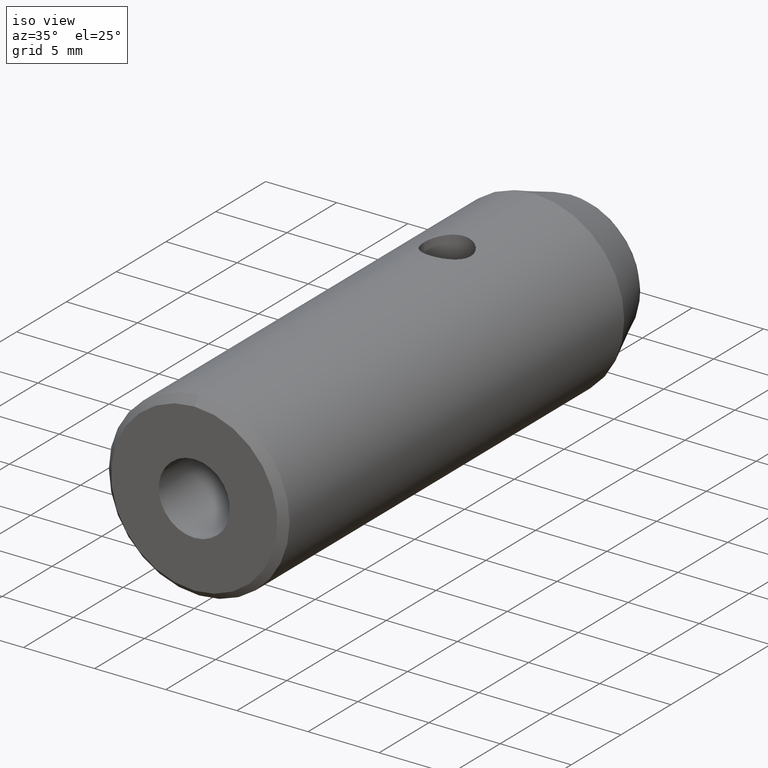
[diagram: clean part render]
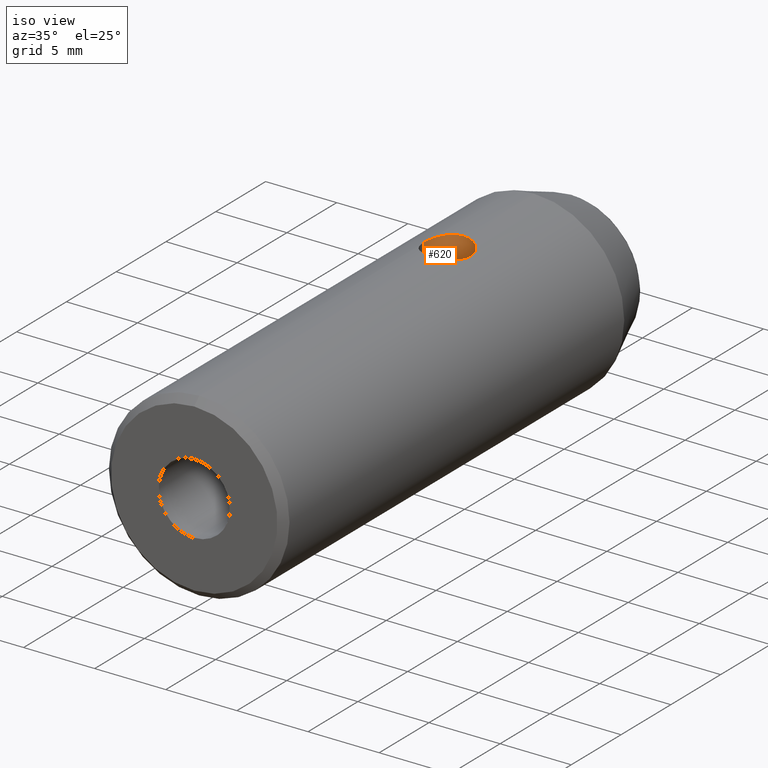
[diagram: same view with one face highlighted and labeled with its STEP entity id]
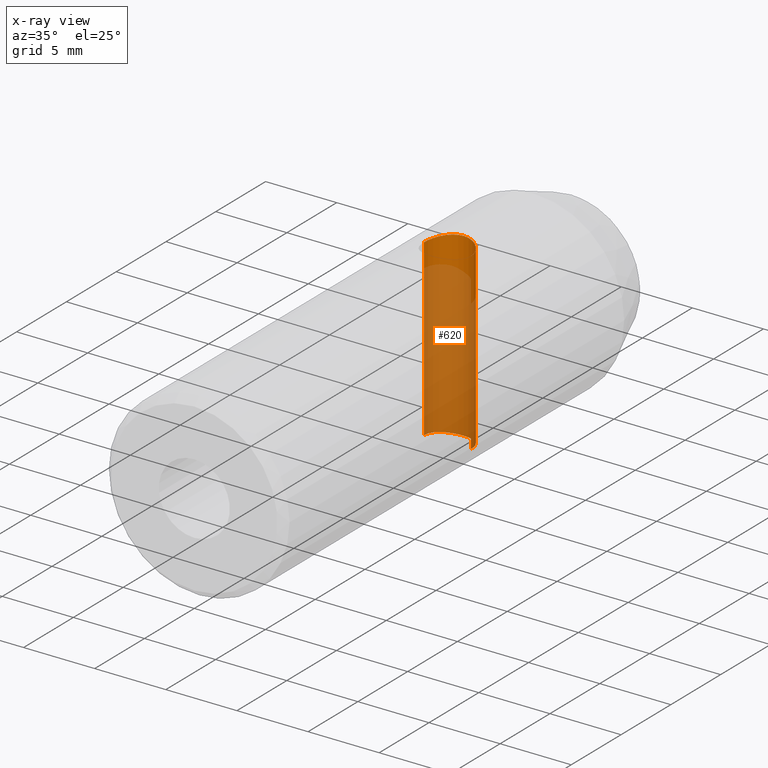
[diagram: x-ray of the same camera — body ghosted, the highlighted face saturated]
A machine part, iso view. The second image highlights one B-rep face of the part: STEP entity #620.
The next image is the same camera in x-ray: the body ghosted, the highlighted face saturated — about 83% of this face is hidden behind the body in this view.
In plain terms, the highlighted cylindrical surface (edge-blend (fillet) strip) has radius 1.65 mm, axis along (0, 0, 1).
Its self-contained STEP definition (entity closure, byte-faithful):
#11 = CARTESIAN_POINT ( 'NONE',  ( -1.649999999999999900, 25.39999999999999900, -6.131883886702356200 ) ) ;
#20 = CARTESIAN_POINT ( 'NONE',  ( 1.650000000000000100, 25.50879101173561400, -6.131883886702358800 ) ) ;
#23 = CARTESIAN_POINT ( 'NONE',  ( 0.5350354595222538400, 26.96454767843864900, -6.328206572559576400 ) ) ;
#24 = EDGE_LOOP ( 'NONE', ( #558, #426, #527, #247, #420, #229 ) ) ;
#31 = CARTESIAN_POINT ( 'NONE',  ( -1.243166558392556000, 26.49023665135910800, 6.227601864458365300 ) ) ;
#36 = CARTESIAN_POINT ( 'NONE',  ( 1.014955855173022000, 26.71839968449205600, 6.270254070800323400 ) ) ;
#41 = CARTESIAN_POINT ( 'NONE',  ( 1.649999999999999900, 25.39999999999999900, -6.349999999999999600 ) ) ;
#46 = ORIENTED_EDGE ( 'NONE', *, *, #455, .F. ) ;
#49 = CARTESIAN_POINT ( 'NONE',  ( -0.1095553982157421400, 27.04999999999999400, -6.349999999999999600 ) ) ;
#52 = CARTESIAN_POINT ( 'NONE',  ( -0.03682806110318779400, 27.04959919837903800, -0.05799023608464262000 ) ) ;
#54 = CARTESIAN_POINT ( 'NONE',  ( -0.05990600339138792100, 27.04891416830398800, -0.03072629399164850100 ) ) ;
#56 = CARTESIAN_POINT ( 'NONE',  ( -0.5338866542031179800, 26.96497814379134500, -6.328311955744355000 ) ) ;
#58 = VERTEX_POINT ( 'NONE', #461 ) ;
#62 = CARTESIAN_POINT ( 'NONE',  ( 0.03962274863853397500, 27.04952418526989900, -0.05543872409836748300 ) ) ;
#68 = CARTESIAN_POINT ( 'NONE',  ( 0.007890637950777627500, 27.04998113256871100, 0.06844979020908142900 ) ) ;
#71 = CARTESIAN_POINT ( 'NONE',  ( -0.7338662764141402600, 26.88181516940444000, 6.308259141329042300 ) ) ;
#73 = VERTEX_POINT ( 'NONE', #11 ) ;
#74 = CARTESIAN_POINT ( 'NONE',  ( 0.03387850186020158200, 27.04966216617872700, -0.05982646994643257800 ) ) ;
#75 = VECTOR ( 'NONE', #334, 1000.000000000000000 ) ;
#76 = VERTEX_POINT ( 'NONE', #405 ) ;
#94 = CARTESIAN_POINT ( 'NONE',  ( -1.649999999999999500, 25.61590744127381200, 6.131883886702359700 ) ) ;
#99 = CARTESIAN_POINT ( 'NONE',  ( -0.01393552564953163100, 27.04994115080656100, 0.06741121392065754800 ) ) ;
#104 = EDGE_CURVE ( 'NONE', #76, #471, #183, .T. ) ;
#114 = CARTESIAN_POINT ( 'NONE',  ( -0.0003362078887242117800, 27.04999999999999700, -0.06893449166124007700 ) ) ;
#118 = CARTESIAN_POINT ( 'NONE',  ( -0.06199473031990503100, 27.04883564851888500, -0.02592253561083731800 ) ) ;
#122 = CARTESIAN_POINT ( 'NONE',  ( 0.03629933878442598300, 27.04961512858166000, 0.05836423644891906800 ) ) ;
#132 = CARTESIAN_POINT ( 'NONE',  ( 0.04795500241280337100, 27.04930297936540000, 0.04789252999281358400 ) ) ;
#155 = CARTESIAN_POINT ( 'NONE',  ( -1.649999999999999900, 25.39999999999999900, 6.131883886702357100 ) ) ;
#160 = CARTESIAN_POINT ( 'NONE',  ( 0.4281799385762387600, 26.99713647002923600, 6.336436576887966700 ) ) ;
#169 = VERTEX_POINT ( 'NONE', #440 ) ;
#174 = CARTESIAN_POINT ( 'NONE',  ( -0.05539182298399637100, 27.04907699773490700, 0.03912716110108634800 ) ) ;
#179 = CARTESIAN_POINT ( 'NONE',  ( 0.02271055150463169300, 27.04985723576792400, 0.06526581259837843700 ) ) ;
#182 = CARTESIAN_POINT ( 'NONE',  ( 0.04548262385783603800, 27.04938342688336700, -0.05096265540635761000 ) ) ;
#183 = B_SPLINE_CURVE_WITH_KNOTS ( 'NONE', 3,
 ( #264, #20, #526, #752, #210, #587, #457, #273, #702, #23, #466, #696, #529, #393 ),
 .UNSPECIFIED., .F., .F.,
 ( 4, 2, 2, 2, 2, 2, 4 ),
 ( 0.007771194966038239400, 0.008094862658375967900, 0.008418530350713698100, 0.009065865735389156900, 0.009713201120064615700, 0.01003686881240234400, 0.01036053650474007100 ),
 .UNSPECIFIED. ) ;
#193 = CARTESIAN_POINT ( 'NONE',  ( 0.04266567767055019800, 27.04945677135143700, 0.05355096243311442700 ) ) ;
#197 = CARTESIAN_POINT ( 'NONE',  ( 7.294886176565602900E-016, 27.05000000000000100, 6.350000000000000500 ) ) ;
#210 = CARTESIAN_POINT ( 'NONE',  ( 1.565099434750583600, 25.93344135047030000, -6.154248455909361800 ) ) ;
#220 = CARTESIAN_POINT ( 'NONE',  ( 1.440522225424550400, 26.23286600692731300, 6.185034426022237900 ) ) ;
#225 = CARTESIAN_POINT ( 'NONE',  ( -1.311126599214326200, 26.40749193462279700, 6.213470141901423100 ) ) ;
#227 = CARTESIAN_POINT ( 'NONE',  ( 0.02732467749160948100, 27.04978798518863000, -0.06331700998621971100 ) ) ;
#229 = ORIENTED_EDGE ( 'NONE', *, *, #236, .F. ) ;
#232 = DIRECTION ( 'NONE',  ( 1.000000000000000000, 0.0000000000000000000, 0.0000000000000000000 ) ) ;
#236 = EDGE_CURVE ( 'NONE', #58, #724, #799, .T. ) ;
#241 = CARTESIAN_POINT ( 'NONE',  ( -1.649999999999999200, 25.61635167910645400, -6.131883886702354400 ) ) ;
#244 = CARTESIAN_POINT ( 'NONE',  ( -0.04264173365966274200, 27.04944890267946500, -0.05299091659055940600 ) ) ;
#246 = B_SPLINE_CURVE_WITH_KNOTS ( 'NONE', 3,
 ( #680, #378, #718, #778, #227, #74, #62, #182, #377, #444, #448, #798, #809, #805, #516, #802, #439, #571, #678, #567, #384, #132, #193, #122, #562, #179, #614, #68, #729, #504, #617 ),
 .UNSPECIFIED., .F., .F.,
 ( 4, 3, 3, 3, 3, 3, 3, 3, 3, 3, 4 ),
 ( 6.933915001524761500E-005, 9.006218883478558300E-005, 0.0001117278780713333200, 0.0001338289604498062800, 0.0001566356009467518000, 0.0001801127260809480900, 0.0002039603812000894200, 0.0002277329915608278200, 0.0002509885571451139000, 0.0002734797462215894900, 0.0002813343657787215500 ),
 .UNSPECIFIED. ) ;
#247 = ORIENTED_EDGE ( 'NONE', *, *, #603, .T. ) ;
#248 = CARTESIAN_POINT ( 'NONE',  ( -0.05928680787046030500, 27.04893674117000700, 0.03244835800942789900 ) ) ;
#253 = VECTOR ( 'NONE', #716, 1000.000000000000000 ) ;
#264 = CARTESIAN_POINT ( 'NONE',  ( 1.650000000000001000, 25.40000000000000200, -6.131883886702356200 ) ) ;
#273 = CARTESIAN_POINT ( 'NONE',  ( 1.015924515481554400, 26.71765271471627700, -6.270094450216704200 ) ) ;
#274 = CARTESIAN_POINT ( 'NONE',  ( 1.639209318810492800, 25.61733569143226000, 6.134816686754136900 ) ) ;
#280 = CARTESIAN_POINT ( 'NONE',  ( -1.091037770774663200, 26.64246353291168400, 6.256047047205924200 ) ) ;
#296 = CARTESIAN_POINT ( 'NONE',  ( -1.606276605166880600, 25.83421013240501900, -6.144068416708106100 ) ) ;
#297 = VERTEX_POINT ( 'NONE', #532 ) ;
#300 = CARTESIAN_POINT ( 'NONE',  ( -1.007227712668181200, 26.71133404291139600, -6.270261411513294200 ) ) ;
#302 = CARTESIAN_POINT ( 'NONE',  ( -0.2171877504661367000, 27.03919783394104200, -6.347168860592018900 ) ) ;
#304 = CARTESIAN_POINT ( 'NONE',  ( -0.06198711566624595000, 27.04883522448162800, 0.02541768641283994500 ) ) ;
#309 = EDGE_CURVE ( 'NONE', #724, #297, #676, .T. ) ;
#315 = CARTESIAN_POINT ( 'NONE',  ( 0.0000000000000000000, 27.04999999999999700, -6.349999999999999600 ) ) ;
#318 = VERTEX_POINT ( 'NONE', #654 ) ;
#330 = EDGE_LOOP ( 'NONE', ( #392, #46 ) ) ;
#334 = DIRECTION ( 'NONE',  ( 0.0000000000000000000, 0.0000000000000000000, 1.000000000000000000 ) ) ;
#341 = CARTESIAN_POINT ( 'NONE',  ( 1.649999999999999900, 25.39999999999999900, 6.131883886702356200 ) ) ;
#343 = CARTESIAN_POINT ( 'NONE',  ( -1.482631616215291700, 26.13203970768170600, 6.174634385605515700 ) ) ;
#345 = CARTESIAN_POINT ( 'NONE',  ( 1.317750811306551000, 26.41579816662547800, 6.213674782255584000 ) ) ;
#350 = CARTESIAN_POINT ( 'NONE',  ( -0.8284832080373340000, 26.83094618766205400, 6.296365815920687200 ) ) ;
#363 = CARTESIAN_POINT ( 'NONE',  ( -0.7335554017690678600, 26.88192038335946100, -6.308285317048411200 ) ) ;
#366 = CARTESIAN_POINT ( 'NONE',  ( -0.01593045956839891900, 27.04993769464106300, -0.06737143826049245300 ) ) ;
#368 = CARTESIAN_POINT ( 'NONE',  ( -0.02287066732061754400, 27.04984148710605000, -0.06475025196469262600 ) ) ;
#375 = CARTESIAN_POINT ( 'NONE',  ( -1.441516095265473500, 26.23108021182086300, -6.184798508325643600 ) ) ;
#377 = CARTESIAN_POINT ( 'NONE',  ( 0.05065683125258969200, 27.04922734156618000, -0.04543718228696080200 ) ) ;
#378 = CARTESIAN_POINT ( 'NONE',  ( 0.006912181153795887400, 27.04999999999999700, -0.06893449166124006300 ) ) ;
#384 = CARTESIAN_POINT ( 'NONE',  ( 0.05336199116492004700, 27.04914576618995500, 0.04210822253388345900 ) ) ;
#390 = EDGE_CURVE ( 'NONE', #169, #318, #498, .T. ) ;
#392 = ORIENTED_EDGE ( 'NONE', *, *, #390, .F. ) ;
#393 = CARTESIAN_POINT ( 'NONE',  ( 0.0000000000000000000, 27.04999999999999700, -6.349999999999999600 ) ) ;
#405 = CARTESIAN_POINT ( 'NONE',  ( 1.650000000000001000, 25.40000000000000200, -6.131883886702356200 ) ) ;
#411 = CARTESIAN_POINT ( 'NONE',  ( -1.649999999999999900, 25.39999999999999900, -6.349999999999999600 ) ) ;
#414 = CARTESIAN_POINT ( 'NONE',  ( -0.02784907781936057900, 27.04977643169878800, 0.06306528732341903900 ) ) ;
#418 = EDGE_CURVE ( 'NONE', #471, #73, #556, .T. ) ;
#420 = ORIENTED_EDGE ( 'NONE', *, *, #309, .F. ) ;
#423 = CARTESIAN_POINT ( 'NONE',  ( -0.004672885302069480400, 27.04999999999999700, 0.06893449166125878400 ) ) ;
#426 = ORIENTED_EDGE ( 'NONE', *, *, #418, .F. ) ;
#428 = CARTESIAN_POINT ( 'NONE',  ( -0.008427006138372038600, 27.04999515709756300, -0.06881049946441653000 ) ) ;
#430 = CARTESIAN_POINT ( 'NONE',  ( -0.06664342830327904500, 27.04865358807239400, 0.002588668568863807800 ) ) ;
#434 = CARTESIAN_POINT ( 'NONE',  ( -0.001008592743562750900, 27.04999969173956800, -0.06892659973045232900 ) ) ;
#439 = CARTESIAN_POINT ( 'NONE',  ( 0.06598840982570131100, 27.04868002361130800, 0.01275166588333031700 ) ) ;
#440 = CARTESIAN_POINT ( 'NONE',  ( 1.877513054397778300E-013, 27.05000000000005800, 0.06893449166274927300 ) ) ;
#444 = CARTESIAN_POINT ( 'NONE',  ( 0.05477023107902872400, 27.04909072575997100, -0.03931718069920725500 ) ) ;
#448 = CARTESIAN_POINT ( 'NONE',  ( 0.05901355625555519000, 27.04894979482340400, -0.03300387348049758900 ) ) ;
#455 = EDGE_CURVE ( 'NONE', #318, #169, #246, .T. ) ;
#457 = CARTESIAN_POINT ( 'NONE',  ( 1.318491683776829700, 26.41483544359021400, -6.213514843919348600 ) ) ;
#461 = CARTESIAN_POINT ( 'NONE',  ( -1.649999999999999900, 25.39999999999999900, 6.131883886702357100 ) ) ;
#466 = CARTESIAN_POINT ( 'NONE',  ( 0.4298634471662852700, 26.99670317999364100, -6.336326912732532800 ) ) ;
#471 = VERTEX_POINT ( 'NONE', #315 ) ;
#475 = CARTESIAN_POINT ( 'NONE',  ( 7.294886176565602900E-016, 27.05000000000000100, 6.350000000000000500 ) ) ;
#479 = CARTESIAN_POINT ( 'NONE',  ( 1.564557525369204800, 25.93500211837885400, 6.154386527759378100 ) ) ;
#484 = CARTESIAN_POINT ( 'NONE',  ( -0.02098029226483854500, 27.04988165018387700, 0.06585377110146599400 ) ) ;
#491 = CARTESIAN_POINT ( 'NONE',  ( -1.091608024218056800, 26.64192391638410100, -6.255943415907575300 ) ) ;
#493 = CARTESIAN_POINT ( 'NONE',  ( -0.06586595535590780700, 27.04868649791209000, -0.01340892255041033400 ) ) ;
#495 = CARTESIAN_POINT ( 'NONE',  ( -0.06352409037608260100, 27.04877672531543500, -0.02097892737440171600 ) ) ;
#497 = CARTESIAN_POINT ( 'NONE',  ( 8.442012540421851700E-018, 27.04999999999999700, -0.06893449166124009100 ) ) ;
#498 = B_SPLINE_CURVE_WITH_KNOTS ( 'NONE', 3,
 ( #601, #423, #658, #99, #484, #414, #687, #610, #733, #797, #174, #248, #304, #555, #552, #430, #616, #493, #495, #118, #54, #557, #801, #551, #244, #52, #725, #368, #366, #428, #434, #673, #114, #497 ),
 .UNSPECIFIED., .F., .F.,
 ( 4, 3, 3, 3, 3, 3, 3, 3, 3, 3, 3, 4 ),
 ( 0.0002813343657787215500, 0.0002953194792517982900, 0.0003169417001386387400, 0.0003388626840397112600, 0.0003614362629643838000, 0.0003847237298882362300, 0.0004084972484748148000, 0.0004238969173407778800, 0.0004469606157164051000, 0.0004699816509425660300, 0.0004922411712119107800, 0.0004932360673560254700 ),
 .UNSPECIFIED. ) ;
#504 = CARTESIAN_POINT ( 'NONE',  ( 0.002635177808804870600, 27.04999999999999700, 0.06893449166122935000 ) ) ;
#509 = CYLINDRICAL_SURFACE ( 'NONE', #661, 1.649999999999999900 ) ;
#516 = CARTESIAN_POINT ( 'NONE',  ( 0.06705737253360274900, 27.04863688864660500, -0.002987035170306855300 ) ) ;
#524 = LINE ( 'NONE', #41, #253 ) ;
#526 = CARTESIAN_POINT ( 'NONE',  ( 1.639344959258783000, 25.61616816999400500, -6.134779892737521200 ) ) ;
#527 = ORIENTED_EDGE ( 'NONE', *, *, #104, .F. ) ;
#528 = CARTESIAN_POINT ( 'NONE',  ( 7.294886176565602900E-016, 27.05000000000000100, 6.350000000000000500 ) ) ;
#529 = CARTESIAN_POINT ( 'NONE',  ( 0.1094774065807085900, 27.04999999999997900, -6.349999999999997000 ) ) ;
#532 = CARTESIAN_POINT ( 'NONE',  ( 1.649999999999999900, 25.39999999999999900, 6.131883886702356200 ) ) ;
#540 = CARTESIAN_POINT ( 'NONE',  ( -1.606407598893464700, 25.83389998653244000, 6.144036120290138600 ) ) ;
#543 = DIRECTION ( 'NONE',  ( 0.0000000000000000000, 0.0000000000000000000, 1.000000000000000000 ) ) ;
#550 = CARTESIAN_POINT ( 'NONE',  ( -1.649999999999999900, 25.39999999999999900, -6.131883886702356200 ) ) ;
#551 = CARTESIAN_POINT ( 'NONE',  ( -0.04846968328163629700, 27.04929823788763300, -0.04797931989799758500 ) ) ;
#552 = CARTESIAN_POINT ( 'NONE',  ( -0.06636096358513590700, 27.04866500612730500, 0.01035010489554954000 ) ) ;
#555 = CARTESIAN_POINT ( 'NONE',  ( -0.06477149253634935400, 27.04873054725946300, 0.01816812789755340900 ) ) ;
#556 = B_SPLINE_CURVE_WITH_KNOTS ( 'NONE', 3,
 ( #727, #49, #302, #670, #56, #363, #677, #300, #491, #606, #375, #296, #241, #550 ),
 .UNSPECIFIED., .F., .F.,
 ( 4, 2, 2, 2, 2, 2, 4 ),
 ( 7.061901669623594700E-019, 0.0003238982729965262400, 0.0006477965459930518400, 0.0009716948189895772700, 0.001295593091986102800, 0.001943389637979145900, 0.002591186183972189600 ),
 .UNSPECIFIED. ) ;
#557 = CARTESIAN_POINT ( 'NONE',  ( -0.05732615113253668200, 27.04900385457129300, -0.03521160281230363600 ) ) ;
#558 = ORIENTED_EDGE ( 'NONE', *, *, #732, .F. ) ;
#562 = CARTESIAN_POINT ( 'NONE',  ( 0.02939287078004094700, 27.04973817896880200, 0.06187194570027689700 ) ) ;
#567 = CARTESIAN_POINT ( 'NONE',  ( 0.05780636922755260500, 27.04899006523700300, 0.03527249470993730500 ) ) ;
#570 = CARTESIAN_POINT ( 'NONE',  ( -0.4324941403480542800, 27.00710685715197500, 6.338471522523559700 ) ) ;
#571 = CARTESIAN_POINT ( 'NONE',  ( 0.06407775087691100500, 27.04875829711371400, 0.02069958222541823700 ) ) ;
#587 = CARTESIAN_POINT ( 'NONE',  ( 1.441186265408702000, 26.23178471288549900, -6.184878603438766800 ) ) ;
#592 = LINE ( 'NONE', #411, #75 ) ;
#594 = CARTESIAN_POINT ( 'NONE',  ( 0.1087848980353966800, 27.05000000000000800, 6.350000000000001400 ) ) ;
#601 = CARTESIAN_POINT ( 'NONE',  ( 1.877513054397778300E-013, 27.05000000000005800, 0.06893449166274927300 ) ) ;
#603 = EDGE_CURVE ( 'NONE', #76, #297, #524, .T. ) ;
#606 = CARTESIAN_POINT ( 'NONE',  ( -1.318807138192842800, 26.41448514170880600, -6.213452513582923900 ) ) ;
#610 = CARTESIAN_POINT ( 'NONE',  ( -0.04023626167989497600, 27.04952112898710900, 0.05547275309806840700 ) ) ;
#614 = CARTESIAN_POINT ( 'NONE',  ( 0.01532995350592976200, 27.04994555583120400, 0.06753261175939363800 ) ) ;
#616 = CARTESIAN_POINT ( 'NONE',  ( -0.06693163576056637700, 27.04864193787907900, -0.005330564117316029600 ) ) ;
#617 = CARTESIAN_POINT ( 'NONE',  ( 1.877513054397778300E-013, 27.05000000000005800, 0.06893449166274927300 ) ) ;
#620 = ADVANCED_FACE ( 'NONE', ( #731, #627 ), #509, .F. ) ;
#627 = FACE_BOUND ( 'NONE', #330, .T. ) ;
#639 = CARTESIAN_POINT ( 'NONE',  ( 1.596706807828288900, 25.82984807022981100, 6.146015810326796100 ) ) ;
#654 = CARTESIAN_POINT ( 'NONE',  ( 8.442012540421851700E-018, 27.04999999999999700, -0.06893449166124009100 ) ) ;
#655 = CARTESIAN_POINT ( 'NONE',  ( 0.0000000000000000000, 25.39999999999999900, -6.349999999999999600 ) ) ;
#658 = CARTESIAN_POINT ( 'NONE',  ( -0.009372967763386275500, 27.04997968650973700, 0.06841989503175113800 ) ) ;
#661 = AXIS2_PLACEMENT_3D ( 'NONE', #655, #543, #232 ) ;
#670 = CARTESIAN_POINT ( 'NONE',  ( -0.4287914133757511100, 26.99695897929933600, -6.336391795622864400 ) ) ;
#673 = CARTESIAN_POINT ( 'NONE',  ( -0.0006724260839905494900, 27.04999989722763900, -0.06893186083367366900 ) ) ;
#676 = B_SPLINE_CURVE_WITH_KNOTS ( 'NONE', 3,
 ( #475, #594, #705, #160, #761, #766, #36, #345, #220, #479, #639, #274, #772, #341 ),
 .UNSPECIFIED., .F., .F.,
 ( 4, 2, 2, 2, 2, 2, 4 ),
 ( 0.007771094307911110800, 0.008094760523536416800, 0.008418426739161724600, 0.009065759170412336600, 0.009713091601662950500, 0.01003675781728825800, 0.01036042403291356400 ),
 .UNSPECIFIED. ) ;
#677 = CARTESIAN_POINT ( 'NONE',  ( -0.8281761633611065500, 26.83116347064394000, -6.296412476666371400 ) ) ;
#678 = CARTESIAN_POINT ( 'NONE',  ( 0.06093657551923839500, 27.04887438386433400, 0.02799878296702419700 ) ) ;
#680 = CARTESIAN_POINT ( 'NONE',  ( 8.442012540421851700E-018, 27.04999999999999700, -0.06893449166124009100 ) ) ;
#687 = CARTESIAN_POINT ( 'NONE',  ( -0.03399965948671206100, 27.04964966679437300, 0.05929538269126435900 ) ) ;
#696 = CARTESIAN_POINT ( 'NONE',  ( 0.2173364897669806400, 27.03920971154616400, -6.347171510085736700 ) ) ;
#702 = CARTESIAN_POINT ( 'NONE',  ( 0.8329576689541554600, 26.84047597895496700, -6.298295562567704000 ) ) ;
#705 = CARTESIAN_POINT ( 'NONE',  ( 0.2161653051584606900, 27.03934606613197300, 6.347207190061515900 ) ) ;
#711 = CARTESIAN_POINT ( 'NONE',  ( -1.006670063915746200, 26.71171902494408800, 6.270344671252950700 ) ) ;
#716 = DIRECTION ( 'NONE',  ( 0.0000000000000000000, 0.0000000000000000000, 1.000000000000000000 ) ) ;
#718 = CARTESIAN_POINT ( 'NONE',  ( 0.01391057905373218600, 27.04995439025640300, -0.06779198869997754600 ) ) ;
#724 = VERTEX_POINT ( 'NONE', #528 ) ;
#725 = CARTESIAN_POINT ( 'NONE',  ( -0.03004449024901159600, 27.04974204111751800, -0.06204083359859402500 ) ) ;
#727 = CARTESIAN_POINT ( 'NONE',  ( 0.0000000000000000000, 27.04999999999999700, -6.349999999999999600 ) ) ;
#729 = CARTESIAN_POINT ( 'NONE',  ( 0.005275291410231652100, 27.04999363983455800, 0.06877223109328253800 ) ) ;
#731 = FACE_OUTER_BOUND ( 'NONE', #24, .T. ) ;
#732 = EDGE_CURVE ( 'NONE', #73, #58, #592, .T. ) ;
#733 = CARTESIAN_POINT ( 'NONE',  ( -0.04590148033098154900, 27.04936804285502900, 0.05054272419351364700 ) ) ;
#742 = CARTESIAN_POINT ( 'NONE',  ( -0.2176407035929111800, 27.05000000000000400, 6.350000000000002300 ) ) ;
#752 = CARTESIAN_POINT ( 'NONE',  ( 1.597140713863175500, 25.82816131689627400, -6.145902518581333000 ) ) ;
#761 = CARTESIAN_POINT ( 'NONE',  ( 0.5334774331399346800, 26.96508839974752900, 6.328340545610159600 ) ) ;
#766 = CARTESIAN_POINT ( 'NONE',  ( 0.8318674767962732600, 26.84114398441794000, 6.298449446695658900 ) ) ;
#770 = CARTESIAN_POINT ( 'NONE',  ( -1.430937917797907400, 26.22855876852852900, 6.186976712326953500 ) ) ;
#772 = CARTESIAN_POINT ( 'NONE',  ( 1.650000000000000100, 25.50948077899218800, 6.131883886702358000 ) ) ;
#778 = CARTESIAN_POINT ( 'NONE',  ( 0.02046706596683730800, 27.04987305548357300, -0.06560472732650128600 ) ) ;
#797 = CARTESIAN_POINT ( 'NONE',  ( -0.05057760297835405700, 27.04922463784560400, 0.04491799861081285200 ) ) ;
#798 = CARTESIAN_POINT ( 'NONE',  ( 0.06224211037480473200, 27.04882681698297400, -0.02589145127861292700 ) ) ;
#799 = B_SPLINE_CURVE_WITH_KNOTS ( 'NONE', 3,
 ( #155, #94, #540, #343, #770, #225, #31, #280, #711, #350, #71, #570, #742, #197 ),
 .UNSPECIFIED., .F., .F.,
 ( 4, 2, 2, 2, 2, 2, 4 ),
 ( 0.005180920702195111400, 0.005828464103624110400, 0.006152235804338609400, 0.006476007505053108500, 0.006799779205767608400, 0.007123550906482107500, 0.007771094307911110800 ),
 .UNSPECIFIED. ) ;
#801 = CARTESIAN_POINT ( 'NONE',  ( -0.05349363800809483300, 27.04913708847852800, -0.04187477697793975200 ) ) ;
#802 = CARTESIAN_POINT ( 'NONE',  ( 0.06652693937757030200, 27.04865829277538600, 0.004822712363469456600 ) ) ;
#805 = CARTESIAN_POINT ( 'NONE',  ( 0.06627273382070625300, 27.04866979986380200, -0.01099191573306739800 ) ) ;
#809 = CARTESIAN_POINT ( 'NONE',  ( 0.06422874488697415100, 27.04874942557389200, -0.01854769120591897800 ) ) ;